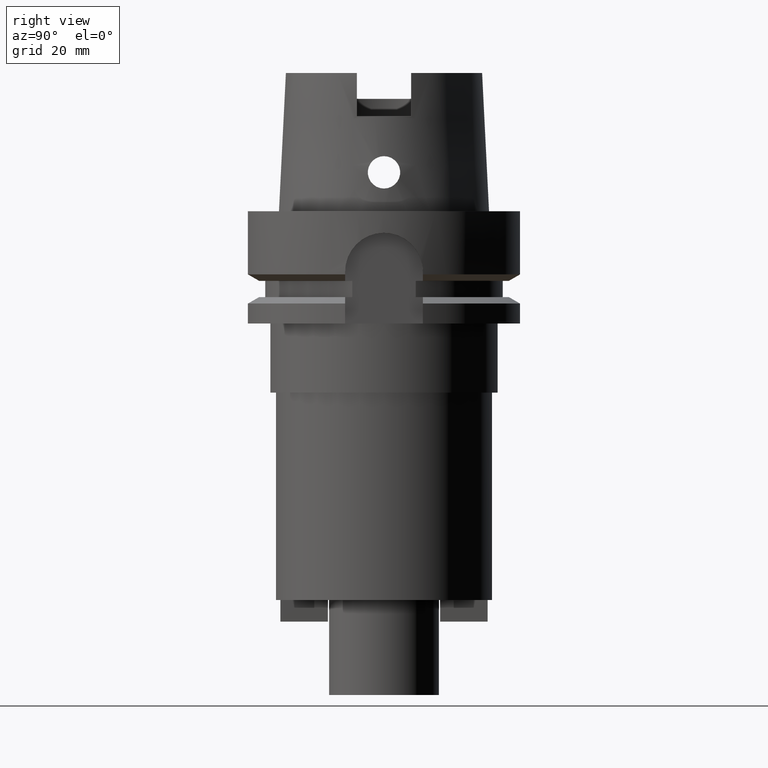
[diagram: clean part render]
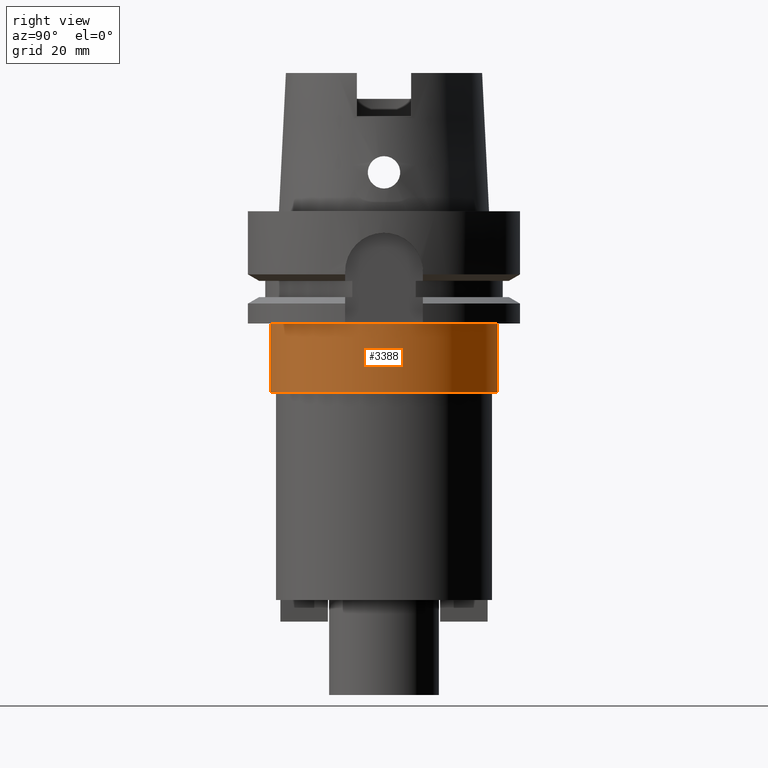
[diagram: same view with one face highlighted and labeled with its STEP entity id]
A machine part, right view. The second image highlights one B-rep face of the part: STEP entity #3388.
In plain terms, the highlighted cylindrical surface (partial cylindrical patch) has radius 26.3 mm, axis along (0, 0, 1).
Its self-contained STEP definition (entity closure, byte-faithful):
#771=CARTESIAN_POINT('',(0.E0,0.E0,-2.6E1));
#772=DIRECTION('',(0.E0,0.E0,-1.E0));
#773=DIRECTION('',(0.E0,1.E0,0.E0));
#774=AXIS2_PLACEMENT_3D('',#771,#772,#773);
#1303=DIRECTION('',(0.E0,0.E0,-1.E0));
#1304=VECTOR('',#1303,1.6E1);
#1305=CARTESIAN_POINT('',(0.E0,-2.63E1,-2.6E1));
#1306=LINE('',#1305,#1304);
#1310=DIRECTION('',(0.E0,0.E0,-1.E0));
#1311=VECTOR('',#1310,1.6E1);
#1312=CARTESIAN_POINT('',(0.E0,2.63E1,-2.6E1));
#1313=LINE('',#1312,#1311);
#1317=CARTESIAN_POINT('',(0.E0,0.E0,-4.2E1));
#1318=DIRECTION('',(0.E0,0.E0,1.E0));
#1319=DIRECTION('',(0.E0,-1.E0,0.E0));
#1320=AXIS2_PLACEMENT_3D('',#1317,#1318,#1319);
#2325=CARTESIAN_POINT('',(0.E0,-2.63E1,-4.2E1));
#2326=CARTESIAN_POINT('',(0.E0,2.63E1,-4.2E1));
#2327=VERTEX_POINT('',#2325);
#2328=VERTEX_POINT('',#2326);
#2329=CARTESIAN_POINT('',(0.E0,2.63E1,-2.6E1));
#2330=VERTEX_POINT('',#2329);
#2331=CARTESIAN_POINT('',(0.E0,-2.63E1,-2.6E1));
#2332=VERTEX_POINT('',#2331);
#3376=CARTESIAN_POINT('',(0.E0,0.E0,-1.192E2));
#3377=DIRECTION('',(0.E0,0.E0,1.E0));
#3378=DIRECTION('',(0.E0,1.E0,0.E0));
#3379=AXIS2_PLACEMENT_3D('',#3376,#3377,#3378);
#3380=CYLINDRICAL_SURFACE('',#3379,2.63E1);
#3381=ORIENTED_EDGE('',*,*,#3366,.T.);
#3383=ORIENTED_EDGE('',*,*,#3382,.F.);
#3384=ORIENTED_EDGE('',*,*,#3369,.F.);
#3385=ORIENTED_EDGE('',*,*,#2979,.F.);
#3386=EDGE_LOOP('',(#3381,#3383,#3384,#3385));
#3387=FACE_OUTER_BOUND('',#3386,.F.);
#775=CIRCLE('',#774,2.63E1);
#1321=CIRCLE('',#1320,2.63E1);
#2979=EDGE_CURVE('',#2330,#2332,#775,.T.);
#3366=EDGE_CURVE('',#2330,#2328,#1313,.T.);
#3369=EDGE_CURVE('',#2332,#2327,#1306,.T.);
#3382=EDGE_CURVE('',#2327,#2328,#1321,.T.);
#3388=ADVANCED_FACE('',(#3387),#3380,.T.);